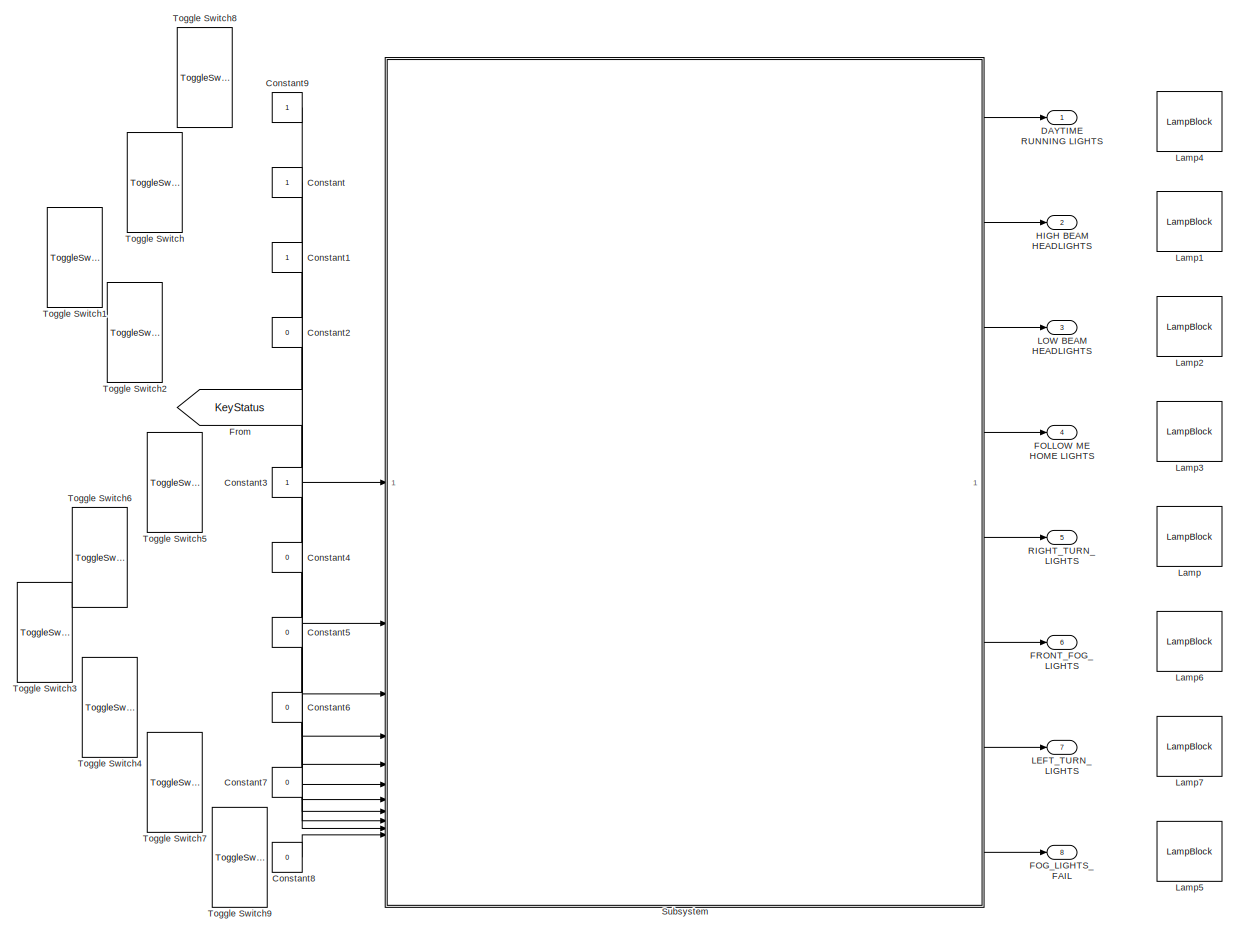
[diagram: root canvas - part 1/2, right side, full height]
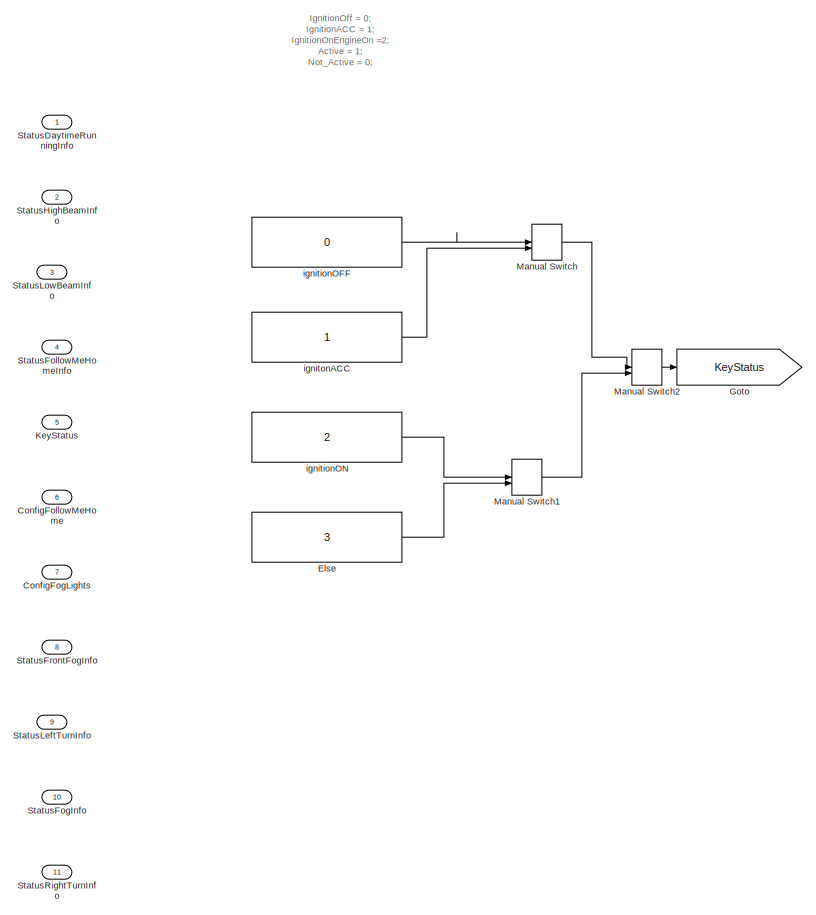
[diagram: root canvas - part 2/2, left side, full height]
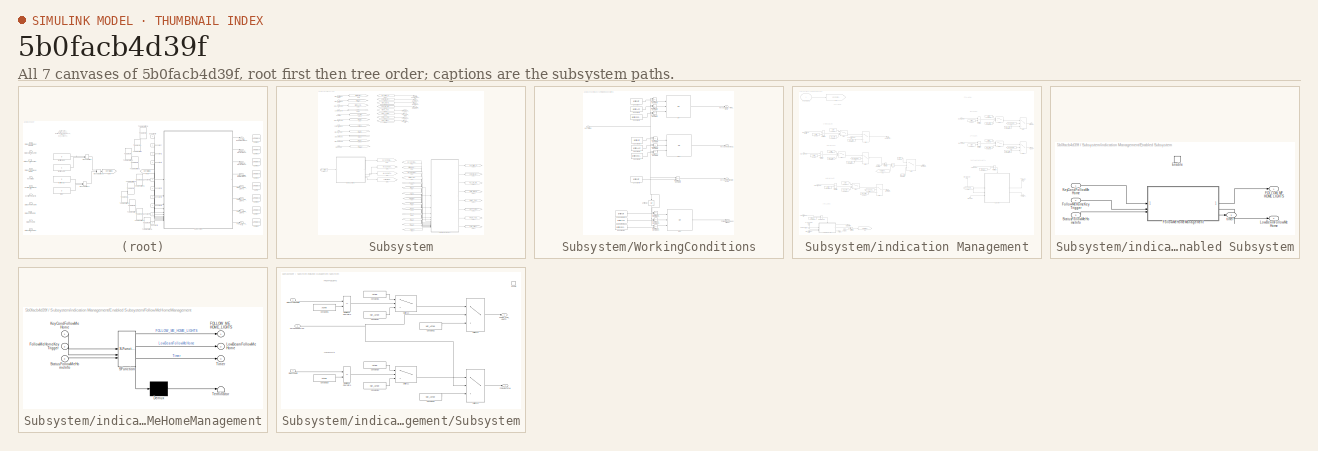
[diagram: thumbnail index - all 7 canvases of the model, root first then tree order]
MODEL slx_5b0facb4d39f
KIND model
CONFIG AbsTol = auto
CONFIG EnableMultiTasking = off
CONFIG FixedStep = 0.01
CONFIG MaxStep = auto
CONFIG MinStep = auto
CONFIG RelTol = 1e-3
CONFIG SampleTimeConstraint = Unconstrained
CONFIG SolverName = FixedStepDiscrete
CONFIG StartTime = 0.0
CONFIG StopTime = inf
WORKSPACE source: MATLAB code (in-file)
WORKSPACE IgnitionOff = 0
WORKSPACE IgnitionACC = 1
WORKSPACE IgnitionOnEngineOn = 2
WORKSPACE Active = 1
WORKSPACE Not_Active = 0
WORKSPACE Present = 1
WORKSPACE Absent = 0
BLOCK [Inport] ConfigFogLights
  Port = 7
BLOCK [Inport] ConfigFollowMeHome
  Port = 6
BLOCK [Constant] Constant
BLOCK [Constant] Constant1
BLOCK [Constant] Constant2
  Value = 0
BLOCK [Constant] Constant3
BLOCK [Constant] Constant4
  Value = 0
BLOCK [Constant] Constant5
  Value = 0
BLOCK [Constant] Constant6
  Value = 0
BLOCK [Constant] Constant7
  Value = 0
BLOCK [Constant] Constant8
  Value = 0
BLOCK [Constant] Constant9
BLOCK [Outport] DAYTIME RUNNING LIGHTS
BLOCK [Constant] Else
  SampleTime = -1
  Value = 3
BLOCK [Outport] FOG_LIGHTS_FAIL
  Port = 8
BLOCK [Outport] FOLLOW ME HOME LIGHTS
  Port = 4
BLOCK [Outport] FRONT_FOG_LIGHTS
  Port = 6
BLOCK [From] From
  GotoTag = KeyStatus
BLOCK [Goto] Goto
  GotoTag = KeyStatus
BLOCK [Outport] HIGH BEAM HEADLIGHTS
  Port = 2
BLOCK [Inport] KeyStatus
  Port = 5
BLOCK [Outport] LEFT_TURN_LIGHTS
  Port = 7
BLOCK [Outport] LOW BEAM HEADLIGHTS
  Port = 3
BLOCK [LampBlock] Lamp
  LabelPosition = Hide
BLOCK [LampBlock] Lamp1
  LabelPosition = Hide
BLOCK [LampBlock] Lamp2
  LabelPosition = Hide
BLOCK [LampBlock] Lamp3
  LabelPosition = Hide
BLOCK [LampBlock] Lamp4
  LabelPosition = Hide
BLOCK [LampBlock] Lamp5
  LabelPosition = Hide
BLOCK [LampBlock] Lamp6
  LabelPosition = Hide
BLOCK [LampBlock] Lamp7
  LabelPosition = Hide
BLOCK [ManualSwitch] Manual Switch
BLOCK [ManualSwitch] Manual Switch1
BLOCK [ManualSwitch] Manual Switch2
  CurrentSetting = 0
BLOCK [Outport] RIGHT_TURN_LIGHTS
  Port = 5
BLOCK [Inport] StatusDaytimeRunningInfo
BLOCK [Inport] StatusFogInfo
  Port = 10
BLOCK [Inport] StatusFollowMeHomeInfo
  Port = 4
BLOCK [Inport] StatusFrontFogInfo
  Port = 8
BLOCK [Inport] StatusHighBeamInfo
  Port = 2
BLOCK [Inport] StatusLeftTurnInfo
  Port = 9
BLOCK [Inport] StatusLowBeamInfo
  Port = 3
BLOCK [Inport] StatusRightTurnInfo
  Port = 11
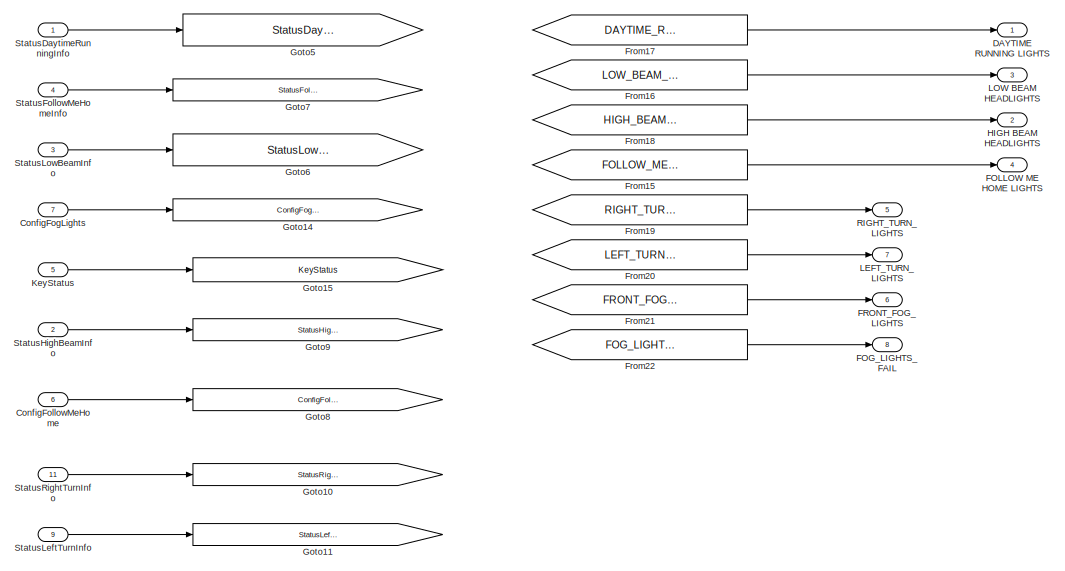
[diagram: Subsystem - part 1/3, top center region]
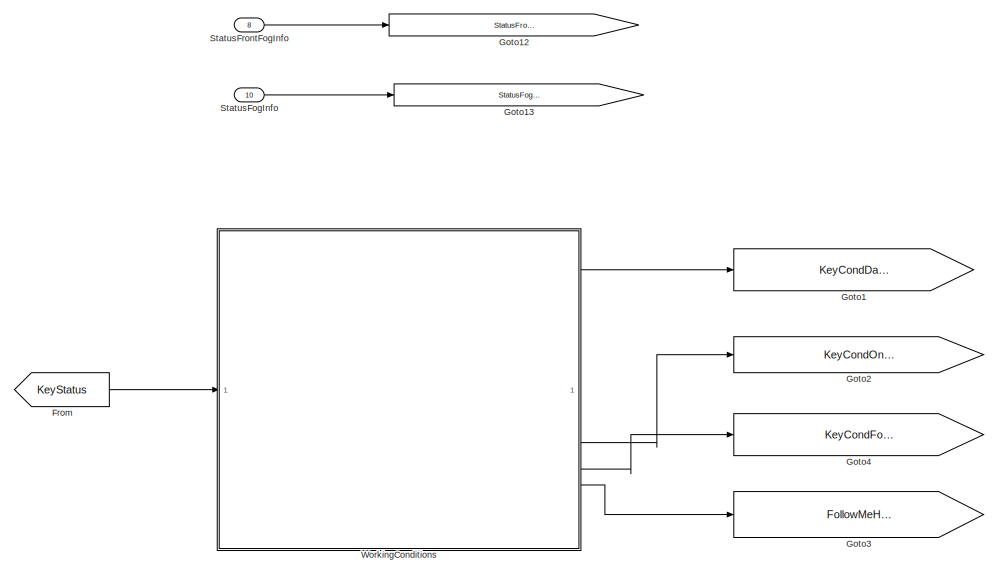
[diagram: Subsystem - part 2/3, middle left region]
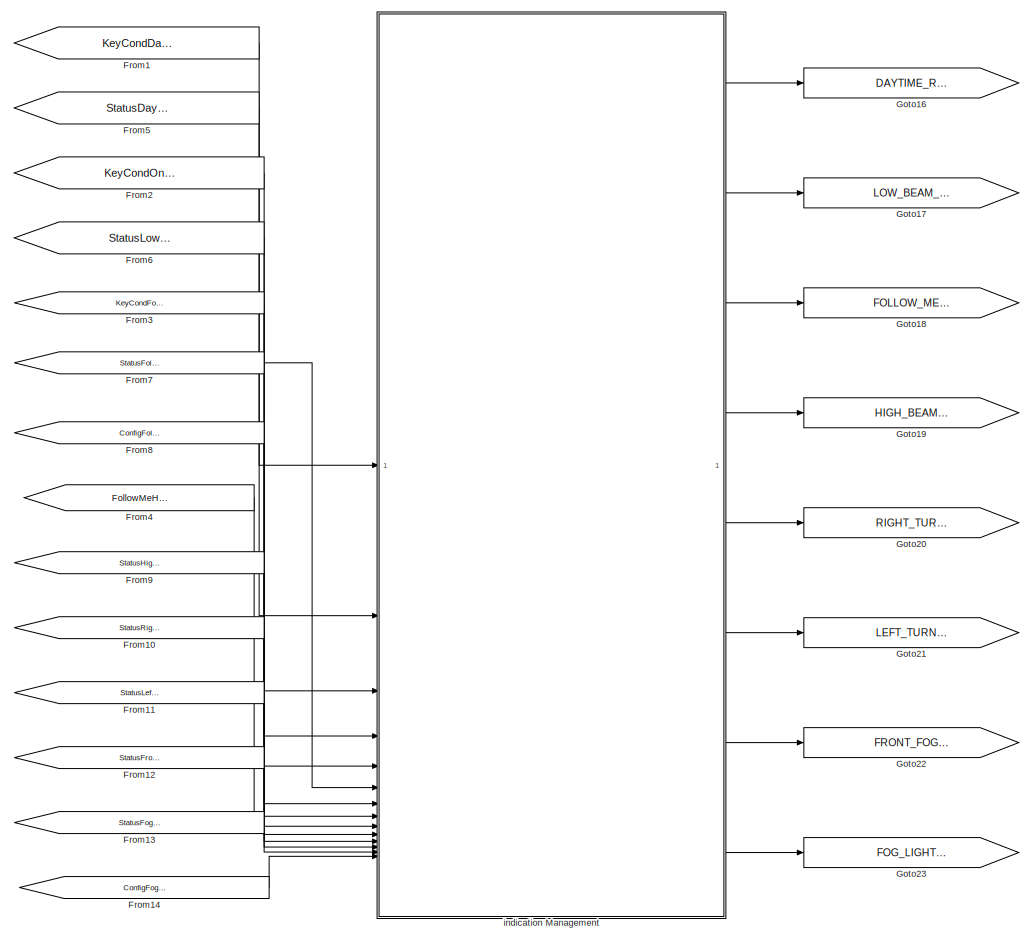
[diagram: Subsystem - part 3/3, bottom right region]
BLOCK [SubSystem] Subsystem
BLOCK [Inport] Subsystem/ConfigFogLights
  Port = 7
BLOCK [Inport] Subsystem/ConfigFollowMeHome
  Port = 6
BLOCK [Outport] Subsystem/DAYTIME RUNNING LIGHTS
BLOCK [Outport] Subsystem/FOG_LIGHTS_FAIL
  Port = 8
BLOCK [Outport] Subsystem/FOLLOW ME HOME LIGHTS
  Port = 4
BLOCK [Outport] Subsystem/FRONT_FOG_LIGHTS
  Port = 6
BLOCK [From] Subsystem/From
  GotoTag = KeyStatus
BLOCK [From] Subsystem/From1
  GotoTag = KeyCondDayTimeLights
BLOCK [From] Subsystem/From10
  GotoTag = StatusRightTurnInfo
BLOCK [From] Subsystem/From11
  GotoTag = StatusLeftTurnInfo
BLOCK [From] Subsystem/From12
  GotoTag = StatusFrontFogInfo
BLOCK [From] Subsystem/From13
  GotoTag = StatusFogInfo
BLOCK [From] Subsystem/From14
  GotoTag = ConfigFogLights
BLOCK [From] Subsystem/From15
  GotoTag = FOLLOW_ME_HOME_LIGHTS
BLOCK [From] Subsystem/From16
  GotoTag = LOW_BEAM_HEADLIGHTS
BLOCK [From] Subsystem/From17
  GotoTag = DAYTIME_RUNNING_LIGHTS
BLOCK [From] Subsystem/From18
  GotoTag = HIGH_BEAM_HEADLIGHTS
BLOCK [From] Subsystem/From19
  GotoTag = RIGHT_TURN_LIGHTS
BLOCK [From] Subsystem/From2
  GotoTag = KeyCondOnOrACC
BLOCK [From] Subsystem/From20
  GotoTag = LEFT_TURN_LIGHTS
BLOCK [From] Subsystem/From21
  GotoTag = FRONT_FOG_LIGHTS
BLOCK [From] Subsystem/From22
  GotoTag = FOG_LIGHTS_FAIL
BLOCK [From] Subsystem/From3
  GotoTag = KeyCondFollowMeHome
BLOCK [From] Subsystem/From4
  GotoTag = FollowMeHomeKeyTrigger
BLOCK [From] Subsystem/From5
  GotoTag = StatusDaytimeRunningInfos
BLOCK [From] Subsystem/From6
  GotoTag = StatusLowBeamInfo
BLOCK [From] Subsystem/From7
  GotoTag = StatusFollowMeHomeInfo
BLOCK [From] Subsystem/From8
  GotoTag = ConfigFollowMeHome
BLOCK [From] Subsystem/From9
  GotoTag = StatusHighBeamInfo
BLOCK [Goto] Subsystem/Goto1
  GotoTag = KeyCondDayTimeLights
BLOCK [Goto] Subsystem/Goto10
  GotoTag = StatusRightTurnInfo
BLOCK [Goto] Subsystem/Goto11
  GotoTag = StatusLeftTurnInfo
BLOCK [Goto] Subsystem/Goto12
  GotoTag = StatusFrontFogInfo
BLOCK [Goto] Subsystem/Goto13
  GotoTag = StatusFogInfo
BLOCK [Goto] Subsystem/Goto14
  GotoTag = ConfigFogLights
BLOCK [Goto] Subsystem/Goto15
  GotoTag = KeyStatus
BLOCK [Goto] Subsystem/Goto16
  GotoTag = DAYTIME_RUNNING_LIGHTS
BLOCK [Goto] Subsystem/Goto17
  GotoTag = LOW_BEAM_HEADLIGHTS
BLOCK [Goto] Subsystem/Goto18
  GotoTag = FOLLOW_ME_HOME_LIGHTS
BLOCK [Goto] Subsystem/Goto19
  GotoTag = HIGH_BEAM_HEADLIGHTS
BLOCK [Goto] Subsystem/Goto2
  GotoTag = KeyCondOnOrACC
BLOCK [Goto] Subsystem/Goto20
  GotoTag = RIGHT_TURN_LIGHTS
BLOCK [Goto] Subsystem/Goto21
  GotoTag = LEFT_TURN_LIGHTS
BLOCK [Goto] Subsystem/Goto22
  GotoTag = FRONT_FOG_LIGHTS
BLOCK [Goto] Subsystem/Goto23
  GotoTag = FOG_LIGHTS_FAIL
BLOCK [Goto] Subsystem/Goto3
  GotoTag = FollowMeHomeKeyTrigger
BLOCK [Goto] Subsystem/Goto4
  GotoTag = KeyCondFollowMeHome
BLOCK [Goto] Subsystem/Goto5
  GotoTag = StatusDaytimeRunningInfos
BLOCK [Goto] Subsystem/Goto6
  GotoTag = StatusLowBeamInfo
BLOCK [Goto] Subsystem/Goto7
  GotoTag = StatusFollowMeHomeInfo
BLOCK [Goto] Subsystem/Goto8
  GotoTag = ConfigFollowMeHome
BLOCK [Goto] Subsystem/Goto9
  GotoTag = StatusHighBeamInfo
BLOCK [Outport] Subsystem/HIGH BEAM HEADLIGHTS
  Port = 2
BLOCK [Inport] Subsystem/KeyStatus
  Port = 5
BLOCK [Outport] Subsystem/LEFT_TURN_LIGHTS
  Port = 7
BLOCK [Outport] Subsystem/LOW BEAM HEADLIGHTS
  Port = 3
BLOCK [Outport] Subsystem/RIGHT_TURN_LIGHTS
  Port = 5
BLOCK [Inport] Subsystem/StatusDaytimeRunningInfo
BLOCK [Inport] Subsystem/StatusFogInfo
  Port = 10
BLOCK [Inport] Subsystem/StatusFollowMeHomeInfo
  Port = 4
BLOCK [Inport] Subsystem/StatusFrontFogInfo
  Port = 8
BLOCK [Inport] Subsystem/StatusHighBeamInfo
  Port = 2
BLOCK [Inport] Subsystem/StatusLeftTurnInfo
  Port = 9
BLOCK [Inport] Subsystem/StatusLowBeamInfo
  Port = 3
BLOCK [Inport] Subsystem/StatusRightTurnInfo
  Port = 11
BLOCK [SubSystem] Subsystem/WorkingConditions
BLOCK [Constant] Subsystem/WorkingConditions/Constant
  SampleTime = -1
  Value = IgnitionOff
BLOCK [Constant] Subsystem/WorkingConditions/Constant1
  SampleTime = -1
  Value = IgnitionACC
BLOCK [Constant] Subsystem/WorkingConditions/Constant10
  SampleTime = -1
  Value = IgnitionACC
BLOCK [Constant] Subsystem/WorkingConditions/Constant11
  SampleTime = -1
  Value = IgnitionOnEngineOn
BLOCK [Constant] Subsystem/WorkingConditions/Constant2
  SampleTime = -1
  Value = IgnitionOnEngineOn
BLOCK [Constant] Subsystem/WorkingConditions/Constant3
  SampleTime = -1
  Value = IgnitionOff
BLOCK [Constant] Subsystem/WorkingConditions/Constant4
  SampleTime = -1
  Value = IgnitionACC
BLOCK [Constant] Subsystem/WorkingConditions/Constant5
  SampleTime = -1
  Value = IgnitionOnEngineOn
BLOCK [Constant] Subsystem/WorkingConditions/Constant6
  SampleTime = -1
  Value = IgnitionOff
BLOCK [Constant] Subsystem/WorkingConditions/Constant9
  SampleTime = -1
  Value = IgnitionOff
BLOCK [Outport] Subsystem/WorkingConditions/FollowMeHomeKeyTrigger
  Port = 4
BLOCK [Outport] Subsystem/WorkingConditions/KeyCondDayTimeLights
BLOCK [Outport] Subsystem/WorkingConditions/KeyCondFollowMeHome
  Port = 3
BLOCK [Outport] Subsystem/WorkingConditions/KeyCondOnOrACC
  Port = 2
BLOCK [Inport] Subsystem/WorkingConditions/KeyStatus
BLOCK [Logic] Subsystem/WorkingConditions/OR
  AllPortsSameDT = off
  IconShape = distinctive
  Inputs = 3
  Operator = OR
  OutDataTypeStr = boolean
BLOCK [Logic] Subsystem/WorkingConditions/OR1
  AllPortsSameDT = off
  IconShape = distinctive
  Inputs = 3
  Operator = OR
  OutDataTypeStr = boolean
BLOCK [Logic] Subsystem/WorkingConditions/OR3
  AllPortsSameDT = off
  IconShape = distinctive
  Inputs = 3
  Operator = OR
  OutDataTypeStr = boolean
BLOCK [RelationalOperator] Subsystem/WorkingConditions/Relational Operator1
  InputSameDT = off
  Operator = ==
  OutDataTypeStr = boolean
  RndMeth = Simplest
BLOCK [RelationalOperator] Subsystem/WorkingConditions/Relational Operator10
  InputSameDT = off
  Operator = ==
  OutDataTypeStr = boolean
  RndMeth = Simplest
BLOCK [RelationalOperator] Subsystem/WorkingConditions/Relational Operator11
  InputSameDT = off
  Operator = ==
  OutDataTypeStr = boolean
  RndMeth = Simplest
BLOCK [RelationalOperator] Subsystem/WorkingConditions/Relational Operator12
  InputSameDT = off
  Operator = ==
  OutDataTypeStr = boolean
  RndMeth = Simplest
BLOCK [RelationalOperator] Subsystem/WorkingConditions/Relational Operator2
  InputSameDT = off
  Operator = ==
  OutDataTypeStr = boolean
  RndMeth = Simplest
BLOCK [RelationalOperator] Subsystem/WorkingConditions/Relational Operator3
  InputSameDT = off
  Operator = ==
  OutDataTypeStr = boolean
  RndMeth = Simplest
BLOCK [RelationalOperator] Subsystem/WorkingConditions/Relational Operator4
  InputSameDT = off
  Operator = ==
  OutDataTypeStr = boolean
  RndMeth = Simplest
BLOCK [RelationalOperator] Subsystem/WorkingConditions/Relational Operator5
  InputSameDT = off
  Operator = ~=
  OutDataTypeStr = boolean
  RndMeth = Simplest
BLOCK [RelationalOperator] Subsystem/WorkingConditions/Relational Operator6
  InputSameDT = off
  Operator = ==
  OutDataTypeStr = boolean
  RndMeth = Simplest
BLOCK [RelationalOperator] Subsystem/WorkingConditions/Relational Operator8
  InputSameDT = off
  Operator = ==
  OutDataTypeStr = boolean
  RndMeth = Simplest
BLOCK [UnitDelay] Subsystem/WorkingConditions/Unit Delay
  HasFrameUpgradeWarning = on
  NameLocation = left
  SampleTime = -1
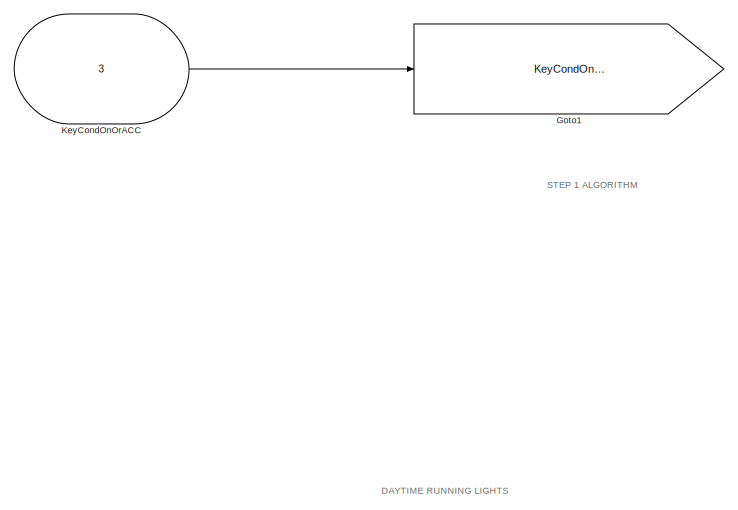
[diagram: Subsystem/indication Management - part 1/7, top left region]
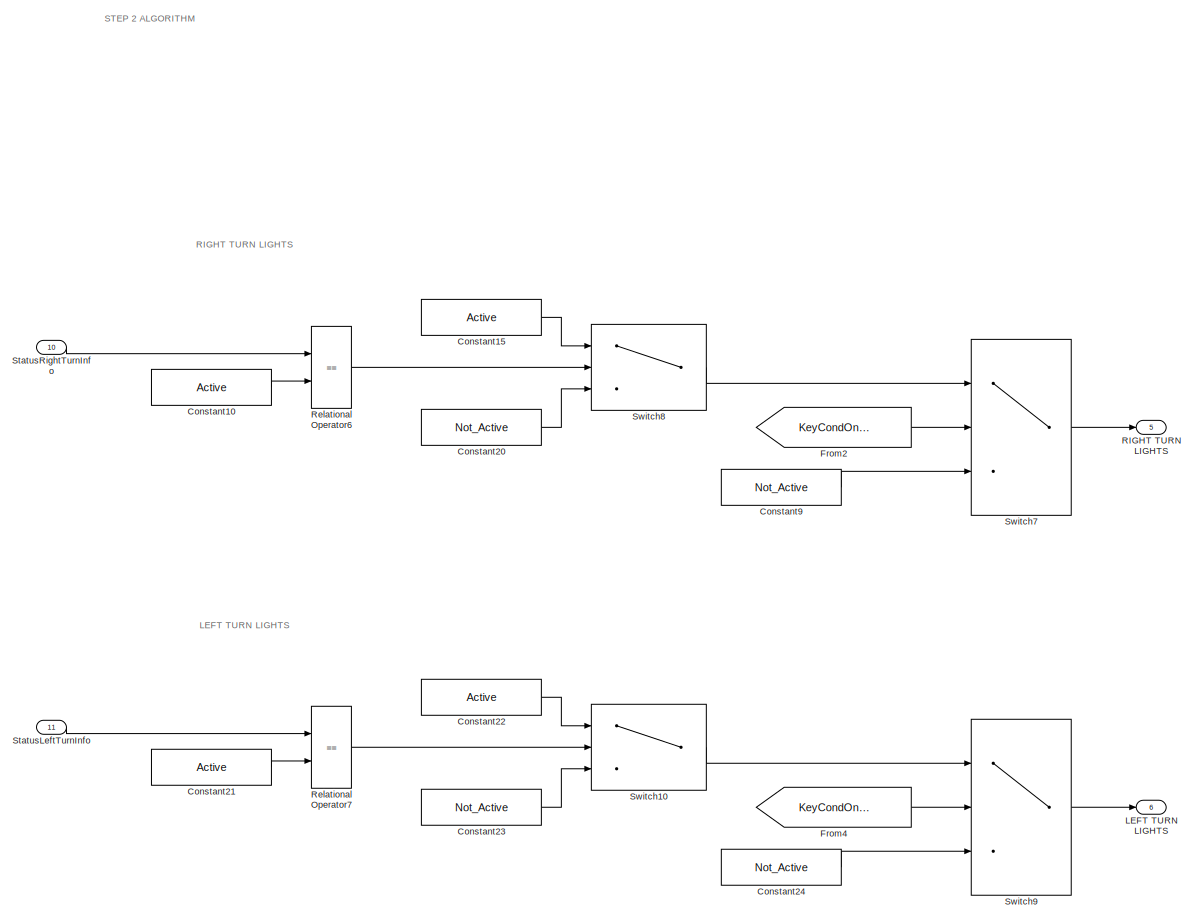
[diagram: Subsystem/indication Management - part 2/7, top right region]
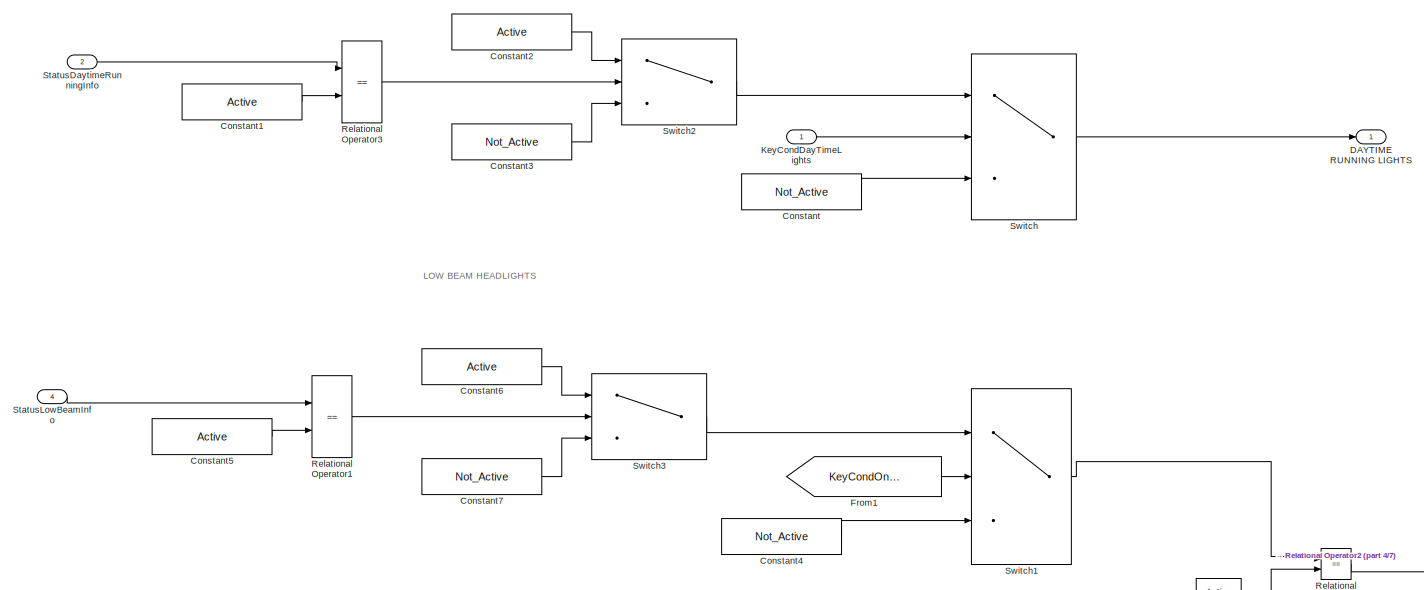
[diagram: Subsystem/indication Management - part 3/7, middle left region]
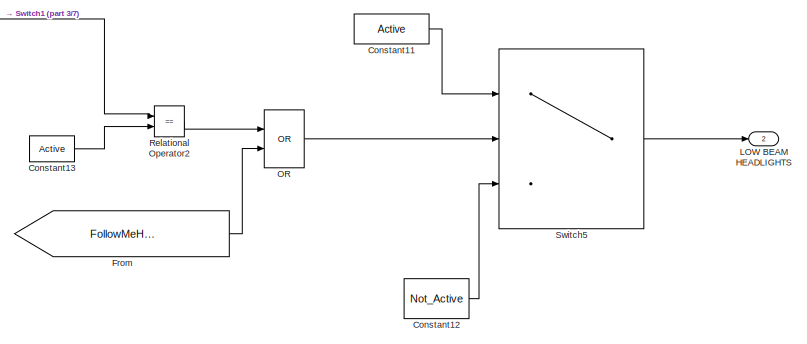
[diagram: Subsystem/indication Management - part 4/7, central region]
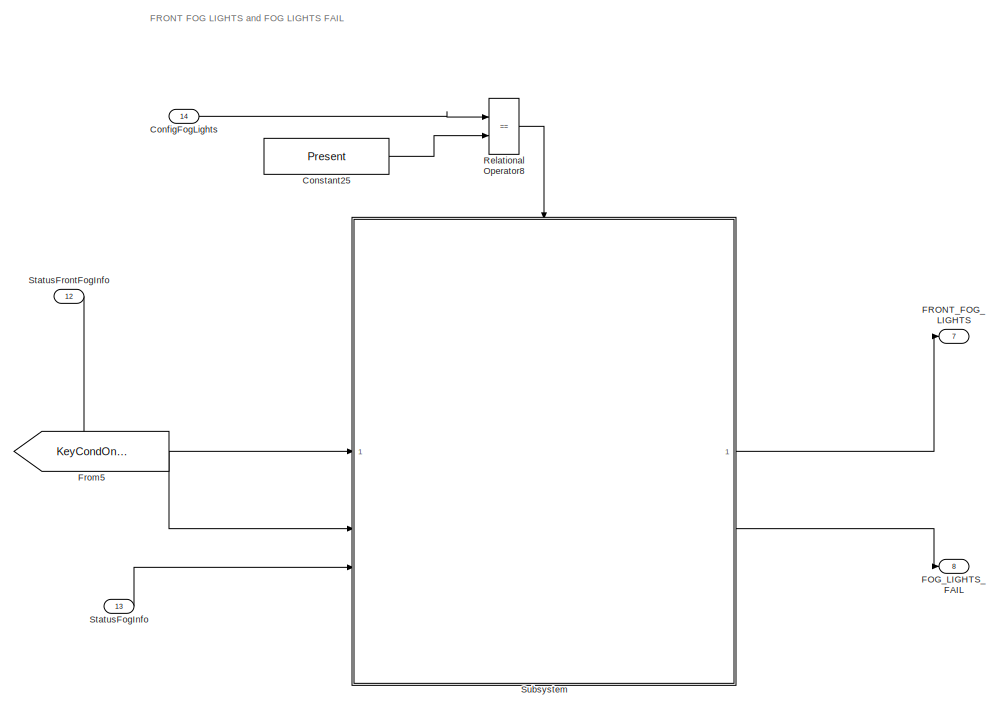
[diagram: Subsystem/indication Management - part 5/7, middle right region]
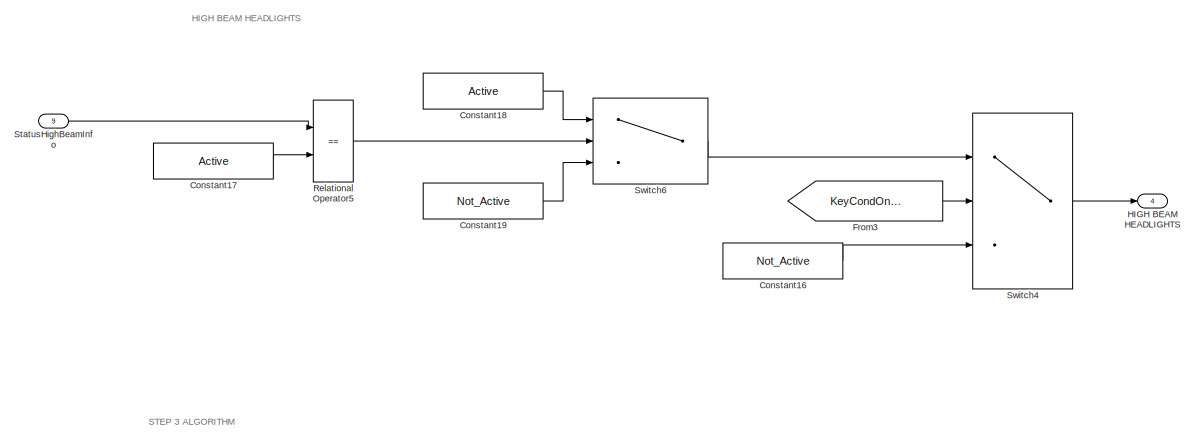
[diagram: Subsystem/indication Management - part 6/7, bottom left region]
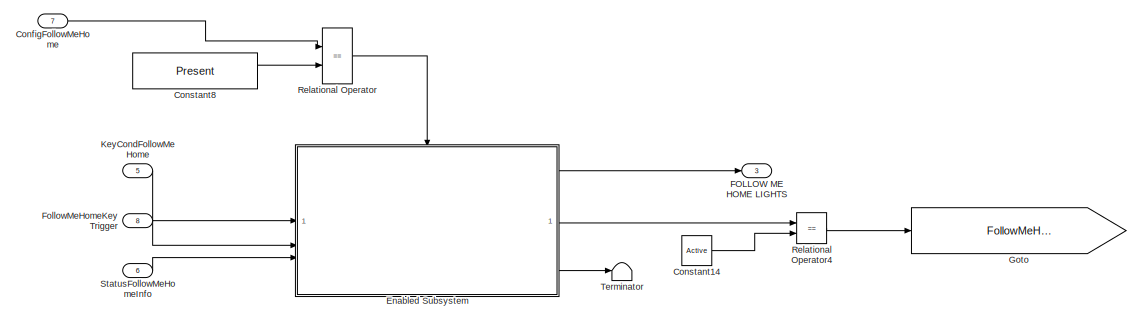
[diagram: Subsystem/indication Management - part 7/7, bottom left region]
BLOCK [SubSystem] Subsystem/indication Management
BLOCK [Inport] Subsystem/indication Management/ConfigFogLights
  Port = 14
BLOCK [Inport] Subsystem/indication Management/ConfigFollowMeHome
  Port = 7
BLOCK [Constant] Subsystem/indication Management/Constant
  SampleTime = -1
  Value = Not_Active
BLOCK [Constant] Subsystem/indication Management/Constant1
  SampleTime = -1
  Value = Active
BLOCK [Constant] Subsystem/indication Management/Constant10
  SampleTime = -1
  Value = Active
BLOCK [Constant] Subsystem/indication Management/Constant11
  SampleTime = -1
  Value = Active
BLOCK [Constant] Subsystem/indication Management/Constant12
  SampleTime = -1
  Value = Not_Active
BLOCK [Constant] Subsystem/indication Management/Constant13
  SampleTime = -1
  Value = Active
BLOCK [Constant] Subsystem/indication Management/Constant14
  SampleTime = -1
  Value = Active
BLOCK [Constant] Subsystem/indication Management/Constant15
  SampleTime = -1
  Value = Active
BLOCK [Constant] Subsystem/indication Management/Constant16
  SampleTime = -1
  Value = Not_Active
BLOCK [Constant] Subsystem/indication Management/Constant17
  SampleTime = -1
  Value = Active
BLOCK [Constant] Subsystem/indication Management/Constant18
  SampleTime = -1
  Value = Active
BLOCK [Constant] Subsystem/indication Management/Constant19
  SampleTime = -1
  Value = Not_Active
BLOCK [Constant] Subsystem/indication Management/Constant2
  SampleTime = -1
  Value = Active
BLOCK [Constant] Subsystem/indication Management/Constant20
  SampleTime = -1
  Value = Not_Active
BLOCK [Constant] Subsystem/indication Management/Constant21
  SampleTime = -1
  Value = Active
BLOCK [Constant] Subsystem/indication Management/Constant22
  SampleTime = -1
  Value = Active
BLOCK [Constant] Subsystem/indication Management/Constant23
  SampleTime = -1
  Value = Not_Active
BLOCK [Constant] Subsystem/indication Management/Constant24
  SampleTime = -1
  Value = Not_Active
BLOCK [Constant] Subsystem/indication Management/Constant25
  SampleTime = -1
  Value = Present
BLOCK [Constant] Subsystem/indication Management/Constant3
  SampleTime = -1
  Value = Not_Active
BLOCK [Constant] Subsystem/indication Management/Constant4
  SampleTime = -1
  Value = Not_Active
BLOCK [Constant] Subsystem/indication Management/Constant5
  SampleTime = -1
  Value = Active
BLOCK [Constant] Subsystem/indication Management/Constant6
  SampleTime = -1
  Value = Active
BLOCK [Constant] Subsystem/indication Management/Constant7
  SampleTime = -1
  Value = Not_Active
BLOCK [Constant] Subsystem/indication Management/Constant8
  SampleTime = -1
  Value = Present
BLOCK [Constant] Subsystem/indication Management/Constant9
  SampleTime = -1
  Value = Not_Active
BLOCK [Outport] Subsystem/indication Management/DAYTIME RUNNING LIGHTS
BLOCK [SubSystem] Subsystem/indication Management/Enabled Subsystem
  TreatAsAtomicUnit = on
BLOCK [EnablePort] Subsystem/indication Management/Enabled Subsystem/Enable
BLOCK [Outport] Subsystem/indication Management/Enabled Subsystem/FOLLOW ME HOME LIGHTS
  InitialOutput = Not_Active
BLOCK [Inport] Subsystem/indication Management/Enabled Subsystem/FollowMeHomeKeyTrigger
  Port = 2
BLOCK [SubSystem] Subsystem/indication Management/Enabled Subsystem/FollowMeHomeManagement
  ErrorFcn = Stateflow.Translate.translate
  PermitHierarchicalResolution = ExplicitOnly
  SFBlockType = Chart
  TreatAsAtomicUnit = on
BLOCK [Demux] Subsystem/indication Management/Enabled Subsystem/FollowMeHomeManagement/ Demux 
  Outputs = 1
BLOCK [S-Function] Subsystem/indication Management/Enabled Subsystem/FollowMeHomeManagement/ SFunction 
  EnableBusSupport = on
  FunctionName = sf_sfun
  Parameters = Active,Not_Active
  PortCounts = [3 4]
  SFcnIsStateOwnerBlock = off
  SFunctionDeploymentMode = off
  Tag = Stateflow S-Function 3
BLOCK [Terminator] Subsystem/indication Management/Enabled Subsystem/FollowMeHomeManagement/ Terminator 
BLOCK [Outport] Subsystem/indication Management/Enabled Subsystem/FollowMeHomeManagement/FOLLOW_ME_HOME_LIGHTS
BLOCK [Inport] Subsystem/indication Management/Enabled Subsystem/FollowMeHomeManagement/FollowMeHomeKeyTrigger
  Port = 2
BLOCK [Inport] Subsystem/indication Management/Enabled Subsystem/FollowMeHomeManagement/KeyCondFollowMeHome
BLOCK [Outport] Subsystem/indication Management/Enabled Subsystem/FollowMeHomeManagement/LowBeamFollowMeHome
  Port = 2
BLOCK [Inport] Subsystem/indication Management/Enabled Subsystem/FollowMeHomeManagement/StatusFollowMeHomeInfo
  Port = 3
BLOCK [Outport] Subsystem/indication Management/Enabled Subsystem/FollowMeHomeManagement/Timer
  Port = 3
BLOCK [Inport] Subsystem/indication Management/Enabled Subsystem/KeyCondFollowMeHome
BLOCK [Outport] Subsystem/indication Management/Enabled Subsystem/LowBeamFollowMeHome
  InitialOutput = Not_Active
  Port = 2
BLOCK [Inport] Subsystem/indication Management/Enabled Subsystem/StatusFollowMeHomeInfo
  Port = 3
BLOCK [Outport] Subsystem/indication Management/Enabled Subsystem/timer
  InitialOutput = Not_Active
  Port = 3
BLOCK [Outport] Subsystem/indication Management/FOG_LIGHTS_FAIL
  Port = 8
BLOCK [Outport] Subsystem/indication Management/FOLLOW ME HOME LIGHTS
  Port = 3
BLOCK [Outport] Subsystem/indication Management/FRONT_FOG_LIGHTS
  Port = 7
BLOCK [Inport] Subsystem/indication Management/FollowMeHomeKeyTrigger
  Port = 8
BLOCK [From] Subsystem/indication Management/From
  GotoTag = FollowMeHomeLowBeamActive
BLOCK [From] Subsystem/indication Management/From1
  GotoTag = KeyCondOnOrACC
BLOCK [From] Subsystem/indication Management/From2
  GotoTag = KeyCondOnOrACC
BLOCK [From] Subsystem/indication Management/From3
  GotoTag = KeyCondOnOrACC
BLOCK [From] Subsystem/indication Management/From4
  GotoTag = KeyCondOnOrACC
BLOCK [From] Subsystem/indication Management/From5
  GotoTag = KeyCondOnOrACC
BLOCK [Goto] Subsystem/indication Management/Goto
  GotoTag = FollowMeHomeLowBeamActive
BLOCK [Goto] Subsystem/indication Management/Goto1
  GotoTag = KeyCondOnOrACC
BLOCK [Outport] Subsystem/indication Management/HIGH BEAM HEADLIGHTS
  Port = 4
BLOCK [Inport] Subsystem/indication Management/KeyCondDayTimeLights
BLOCK [Inport] Subsystem/indication Management/KeyCondFollowMeHome
  Port = 5
BLOCK [Inport] Subsystem/indication Management/KeyCondOnOrACC
  Port = 3
BLOCK [Outport] Subsystem/indication Management/LEFT TURN LIGHTS
  Port = 6
BLOCK [Outport] Subsystem/indication Management/LOW BEAM HEADLIGHTS
  Port = 2
BLOCK [Logic] Subsystem/indication Management/OR
  AllPortsSameDT = off
  IconShape = distinctive
  Operator = OR
  OutDataTypeStr = boolean
BLOCK [Outport] Subsystem/indication Management/RIGHT TURN LIGHTS
  Port = 5
BLOCK [RelationalOperator] Subsystem/indication Management/Relational Operator
  InputSameDT = off
  Operator = ==
  OutDataTypeStr = boolean
  RndMeth = Simplest
BLOCK [RelationalOperator] Subsystem/indication Management/Relational Operator1
  InputSameDT = off
  Operator = ==
  OutDataTypeStr = boolean
  RndMeth = Simplest
BLOCK [RelationalOperator] Subsystem/indication Management/Relational Operator2
  InputSameDT = off
  Operator = ==
  OutDataTypeStr = boolean
  RndMeth = Simplest
BLOCK [RelationalOperator] Subsystem/indication Management/Relational Operator3
  InputSameDT = off
  Operator = ==
  OutDataTypeStr = boolean
  RndMeth = Simplest
BLOCK [RelationalOperator] Subsystem/indication Management/Relational Operator4
  InputSameDT = off
  Operator = ==
  OutDataTypeStr = boolean
  RndMeth = Simplest
BLOCK [RelationalOperator] Subsystem/indication Management/Relational Operator5
  InputSameDT = off
  Operator = ==
  OutDataTypeStr = boolean
  RndMeth = Simplest
BLOCK [RelationalOperator] Subsystem/indication Management/Relational Operator6
  InputSameDT = off
  Operator = ==
  OutDataTypeStr = boolean
  RndMeth = Simplest
BLOCK [RelationalOperator] Subsystem/indication Management/Relational Operator7
  InputSameDT = off
  Operator = ==
  OutDataTypeStr = boolean
  RndMeth = Simplest
BLOCK [RelationalOperator] Subsystem/indication Management/Relational Operator8
  InputSameDT = off
  Operator = ==
  OutDataTypeStr = boolean
  RndMeth = Simplest
BLOCK [Inport] Subsystem/indication Management/StatusDaytimeRunningInfo
  Port = 2
BLOCK [Inport] Subsystem/indication Management/StatusFogInfo
  Port = 13
BLOCK [Inport] Subsystem/indication Management/StatusFollowMeHomeInfo
  Port = 6
BLOCK [Inport] Subsystem/indication Management/StatusFrontFogInfo
  Port = 12
BLOCK [Inport] Subsystem/indication Management/StatusHighBeamInfo
  Port = 9
BLOCK [Inport] Subsystem/indication Management/StatusLeftTurnInfo
  Port = 11
BLOCK [Inport] Subsystem/indication Management/StatusLowBeamInfo
  Port = 4
BLOCK [Inport] Subsystem/indication Management/StatusRightTurnInfo
  Port = 10
BLOCK [SubSystem] Subsystem/indication Management/Subsystem
BLOCK [Constant] Subsystem/indication Management/Subsystem/Constant25
  SampleTime = -1
  Value = Active
BLOCK [Constant] Subsystem/indication Management/Subsystem/Constant26
  SampleTime = -1
  Value = Active
BLOCK [Constant] Subsystem/indication Management/Subsystem/Constant27
  SampleTime = -1
  Value = Not_Active
BLOCK [Constant] Subsystem/indication Management/Subsystem/Constant28
  SampleTime = -1
  Value = Active
BLOCK [Constant] Subsystem/indication Management/Subsystem/Constant29
  SampleTime = -1
  Value = Active
BLOCK [Constant] Subsystem/indication Management/Subsystem/Constant30
  SampleTime = -1
  Value = Not_Active
BLOCK [Constant] Subsystem/indication Management/Subsystem/Constant31
  SampleTime = -1
  Value = Not_Active
BLOCK [Constant] Subsystem/indication Management/Subsystem/Constant32
  SampleTime = -1
  Value = Not_Active
BLOCK [EnablePort] Subsystem/indication Management/Subsystem/Enable
BLOCK [Outport] Subsystem/indication Management/Subsystem/FOG LIGHTS FAIL
  Port = 2
BLOCK [Outport] Subsystem/indication Management/Subsystem/FRONT_FOG_LIGHTS
BLOCK [Inport] Subsystem/indication Management/Subsystem/KeyCondOnOrACC
  Port = 2
BLOCK [RelationalOperator] Subsystem/indication Management/Subsystem/Relational Operator8
  InputSameDT = off
  Operator = ==
  OutDataTypeStr = boolean
  RndMeth = Simplest
BLOCK [RelationalOperator] Subsystem/indication Management/Subsystem/Relational Operator9
  InputSameDT = off
  Operator = ==
  OutDataTypeStr = boolean
  RndMeth = Simplest
BLOCK [Inport] Subsystem/indication Management/Subsystem/StatusFogInfo
  Port = 3
BLOCK [Inport] Subsystem/indication Management/Subsystem/StatusFrontFogInfo
BLOCK [Switch] Subsystem/indication Management/Subsystem/Switch11
  Criteria = u2 ~= 0
  InputSameDT = off
  SaturateOnIntegerOverflow = off
BLOCK [Switch] Subsystem/indication Management/Subsystem/Switch12
  Criteria = u2 ~= 0
  InputSameDT = off
  SaturateOnIntegerOverflow = off
BLOCK [Switch] Subsystem/indication Management/Subsystem/Switch13
  Criteria = u2 ~= 0
  InputSameDT = off
  SaturateOnIntegerOverflow = off
BLOCK [Switch] Subsystem/indication Management/Subsystem/Switch14
  Criteria = u2 ~= 0
  InputSameDT = off
  SaturateOnIntegerOverflow = off
BLOCK [Switch] Subsystem/indication Management/Switch
  Criteria = u2 ~= 0
  InputSameDT = off
  SaturateOnIntegerOverflow = off
BLOCK [Switch] Subsystem/indication Management/Switch1
  Criteria = u2 ~= 0
  InputSameDT = off
  SaturateOnIntegerOverflow = off
BLOCK [Switch] Subsystem/indication Management/Switch10
  Criteria = u2 ~= 0
  InputSameDT = off
  SaturateOnIntegerOverflow = off
BLOCK [Switch] Subsystem/indication Management/Switch2
  Criteria = u2 ~= 0
  InputSameDT = off
  SaturateOnIntegerOverflow = off
BLOCK [Switch] Subsystem/indication Management/Switch3
  Criteria = u2 ~= 0
  InputSameDT = off
  SaturateOnIntegerOverflow = off
BLOCK [Switch] Subsystem/indication Management/Switch4
  Criteria = u2 ~= 0
  InputSameDT = off
  SaturateOnIntegerOverflow = off
BLOCK [Switch] Subsystem/indication Management/Switch5
  Criteria = u2 ~= 0
  InputSameDT = off
  SaturateOnIntegerOverflow = off
BLOCK [Switch] Subsystem/indication Management/Switch6
  Criteria = u2 ~= 0
  InputSameDT = off
  SaturateOnIntegerOverflow = off
BLOCK [Switch] Subsystem/indication Management/Switch7
  Criteria = u2 ~= 0
  InputSameDT = off
  SaturateOnIntegerOverflow = off
BLOCK [Switch] Subsystem/indication Management/Switch8
  Criteria = u2 ~= 0
  InputSameDT = off
  SaturateOnIntegerOverflow = off
BLOCK [Switch] Subsystem/indication Management/Switch9
  Criteria = u2 ~= 0
  InputSameDT = off
  SaturateOnIntegerOverflow = off
BLOCK [Terminator] Subsystem/indication Management/Terminator
BLOCK [ToggleSwitchBlock] Toggle Switch
BLOCK [ToggleSwitchBlock] Toggle Switch1
BLOCK [ToggleSwitchBlock] Toggle Switch2
BLOCK [ToggleSwitchBlock] Toggle Switch3
BLOCK [ToggleSwitchBlock] Toggle Switch4
BLOCK [ToggleSwitchBlock] Toggle Switch5
BLOCK [ToggleSwitchBlock] Toggle Switch6
BLOCK [ToggleSwitchBlock] Toggle Switch7
BLOCK [ToggleSwitchBlock] Toggle Switch8
BLOCK [ToggleSwitchBlock] Toggle Switch9
BLOCK [Constant] ignitionOFF
  SampleTime = -1
  Value = 0
BLOCK [Constant] ignitionON
  SampleTime = -1
  Value = 2
BLOCK [Constant] ignitonACC
  SampleTime = -1
ANNOTATION (root): IgnitionOff = 0; IgnitionACC = 1; IgnitionOnEngineOn =2; Active = 1; Not_Active = 0;
ANNOTATION Subsystem/indication Management: DAYTIME RUNNING LIGHTS
ANNOTATION Subsystem/indication Management: FRONT FOG LIGHTS and FOG LIGHTS FAIL
ANNOTATION Subsystem/indication Management: HIGH BEAM HEADLIGHTS
ANNOTATION Subsystem/indication Management: LEFT TURN LIGHTS
ANNOTATION Subsystem/indication Management: LOW BEAM HEADLIGHTS
ANNOTATION Subsystem/indication Management: RIGHT TURN LIGHTS
ANNOTATION Subsystem/indication Management: STEP 1 ALGORITHM
ANNOTATION Subsystem/indication Management: STEP 2 ALGORITHM
ANNOTATION Subsystem/indication Management: STEP 3 ALGORITHM
ANNOTATION Subsystem/indication Management/Subsystem: FOG LIGHTS FAIL
ANNOTATION Subsystem/indication Management/Subsystem: FRONT FOG LIGHTS
LINE Constant1:1 -> Subsystem:3
LINE Constant2:1 -> Subsystem:4
LINE Constant3:1 -> Subsystem:6
LINE Constant4:1 -> Subsystem:7
LINE Constant5:1 -> Subsystem:8
LINE Constant6:1 -> Subsystem:9
LINE Constant7:1 -> Subsystem:10
LINE Constant8:1 -> Subsystem:11
LINE Constant9:1 -> Subsystem:1
LINE Constant:1 -> Subsystem:2
LINE Else:1 -> Manual Switch1:2
LINE From:1 -> Subsystem:5
LINE Manual Switch1:1 -> Manual Switch2:2
LINE Manual Switch2:1 -> Goto:1
LINE Manual Switch:1 -> Manual Switch2:1
LINE Subsystem/ConfigFogLights:1 -> Subsystem/Goto14:1
LINE Subsystem/ConfigFollowMeHome:1 -> Subsystem/Goto8:1
LINE Subsystem/From10:1 -> Subsystem/indication Management:10
LINE Subsystem/From11:1 -> Subsystem/indication Management:11
LINE Subsystem/From12:1 -> Subsystem/indication Management:12
LINE Subsystem/From13:1 -> Subsystem/indication Management:13
LINE Subsystem/From14:1 -> Subsystem/indication Management:14
LINE Subsystem/From15:1 -> Subsystem/FOLLOW ME HOME LIGHTS:1
LINE Subsystem/From16:1 -> Subsystem/LOW BEAM HEADLIGHTS:1
LINE Subsystem/From17:1 -> Subsystem/DAYTIME RUNNING LIGHTS:1
LINE Subsystem/From18:1 -> Subsystem/HIGH BEAM HEADLIGHTS:1
LINE Subsystem/From19:1 -> Subsystem/RIGHT_TURN_LIGHTS:1
LINE Subsystem/From1:1 -> Subsystem/indication Management:1
LINE Subsystem/From20:1 -> Subsystem/LEFT_TURN_LIGHTS:1
LINE Subsystem/From21:1 -> Subsystem/FRONT_FOG_LIGHTS:1
LINE Subsystem/From22:1 -> Subsystem/FOG_LIGHTS_FAIL:1
LINE Subsystem/From2:1 -> Subsystem/indication Management:3
LINE Subsystem/From3:1 -> Subsystem/indication Management:5
LINE Subsystem/From4:1 -> Subsystem/indication Management:8
LINE Subsystem/From5:1 -> Subsystem/indication Management:2
LINE Subsystem/From6:1 -> Subsystem/indication Management:4
LINE Subsystem/From7:1 -> Subsystem/indication Management:6
LINE Subsystem/From8:1 -> Subsystem/indication Management:7
LINE Subsystem/From9:1 -> Subsystem/indication Management:9
LINE Subsystem/From:1 -> Subsystem/WorkingConditions:1
LINE Subsystem/KeyStatus:1 -> Subsystem/Goto15:1
LINE Subsystem/StatusDaytimeRunningInfo:1 -> Subsystem/Goto5:1
LINE Subsystem/StatusFogInfo:1 -> Subsystem/Goto13:1
LINE Subsystem/StatusFollowMeHomeInfo:1 -> Subsystem/Goto7:1
LINE Subsystem/StatusFrontFogInfo:1 -> Subsystem/Goto12:1
LINE Subsystem/StatusHighBeamInfo:1 -> Subsystem/Goto9:1
LINE Subsystem/StatusLeftTurnInfo:1 -> Subsystem/Goto11:1
LINE Subsystem/StatusLowBeamInfo:1 -> Subsystem/Goto6:1
LINE Subsystem/StatusRightTurnInfo:1 -> Subsystem/Goto10:1
LINE Subsystem/WorkingConditions/Constant10:1 -> Subsystem/WorkingConditions/Relational Operator12:2
LINE Subsystem/WorkingConditions/Constant11:1 -> Subsystem/WorkingConditions/Relational Operator10:2
LINE Subsystem/WorkingConditions/Constant1:1 -> Subsystem/WorkingConditions/Relational Operator4:2
LINE Subsystem/WorkingConditions/Constant2:1 -> Subsystem/WorkingConditions/Relational Operator1:2
LINE Subsystem/WorkingConditions/Constant3:1 -> Subsystem/WorkingConditions/Relational Operator5:2
LINE Subsystem/WorkingConditions/Constant4:1 -> Subsystem/WorkingConditions/Relational Operator6:2
LINE Subsystem/WorkingConditions/Constant5:1 -> Subsystem/WorkingConditions/Relational Operator2:2
LINE Subsystem/WorkingConditions/Constant6:1 -> Subsystem/WorkingConditions/Relational Operator8:2
LINE Subsystem/WorkingConditions/Constant9:1 -> Subsystem/WorkingConditions/Relational Operator11:2
LINE Subsystem/WorkingConditions/Constant:1 -> Subsystem/WorkingConditions/Relational Operator3:2
NET Subsystem/WorkingConditions/KeyStatus:1 -> Subsystem/WorkingConditions/Relational Operator11:1, Subsystem/WorkingConditions/Relational Operator1:1, Subsystem/WorkingConditions/Relational Operator2:1, Subsystem/WorkingConditions/Relational Operator3:1, Subsystem/WorkingConditions/Relational Operator4:1, Subsystem/WorkingConditions/Relational Operator5:1, Subsystem/WorkingConditions/Relational Operator6:1, Subsystem/WorkingConditions/Relational Operator8:1, Subsystem/WorkingConditions/Unit Delay:1
LINE Subsystem/WorkingConditions/OR1:1 -> Subsystem/WorkingConditions/KeyCondOnOrACC:1
LINE Subsystem/WorkingConditions/OR3:1 -> Subsystem/WorkingConditions/FollowMeHomeKeyTrigger:1
LINE Subsystem/WorkingConditions/OR:1 -> Subsystem/WorkingConditions/KeyCondDayTimeLights:1
LINE Subsystem/WorkingConditions/Relational Operator10:1 -> Subsystem/WorkingConditions/OR3:3
LINE Subsystem/WorkingConditions/Relational Operator11:1 -> Subsystem/WorkingConditions/OR3:1
LINE Subsystem/WorkingConditions/Relational Operator12:1 -> Subsystem/WorkingConditions/OR3:2
LINE Subsystem/WorkingConditions/Relational Operator1:1 -> Subsystem/WorkingConditions/OR:3
LINE Subsystem/WorkingConditions/Relational Operator2:1 -> Subsystem/WorkingConditions/OR1:3
LINE Subsystem/WorkingConditions/Relational Operator3:1 -> Subsystem/WorkingConditions/OR:1
LINE Subsystem/WorkingConditions/Relational Operator4:1 -> Subsystem/WorkingConditions/OR:2
LINE Subsystem/WorkingConditions/Relational Operator5:1 -> Subsystem/WorkingConditions/OR1:1
LINE Subsystem/WorkingConditions/Relational Operator6:1 -> Subsystem/WorkingConditions/OR1:2
LINE Subsystem/WorkingConditions/Relational Operator8:1 -> Subsystem/WorkingConditions/KeyCondFollowMeHome:1
NET Subsystem/WorkingConditions/Unit Delay:1 -> Subsystem/WorkingConditions/Relational Operator10:1, Subsystem/WorkingConditions/Relational Operator12:1
LINE Subsystem/WorkingConditions:1 -> Subsystem/Goto1:1
LINE Subsystem/WorkingConditions:2 -> Subsystem/Goto2:1
LINE Subsystem/WorkingConditions:3 -> Subsystem/Goto4:1
LINE Subsystem/WorkingConditions:4 -> Subsystem/Goto3:1
LINE Subsystem/indication Management/ConfigFogLights:1 -> Subsystem/indication Management/Relational Operator8:1
LINE Subsystem/indication Management/ConfigFollowMeHome:1 -> Subsystem/indication Management/Relational Operator:1
LINE Subsystem/indication Management/Constant10:1 -> Subsystem/indication Management/Relational Operator6:2
LINE Subsystem/indication Management/Constant11:1 -> Subsystem/indication Management/Switch5:1
LINE Subsystem/indication Management/Constant12:1 -> Subsystem/indication Management/Switch5:3
LINE Subsystem/indication Management/Constant13:1 -> Subsystem/indication Management/Relational Operator2:2
LINE Subsystem/indication Management/Constant14:1 -> Subsystem/indication Management/Relational Operator4:2
LINE Subsystem/indication Management/Constant15:1 -> Subsystem/indication Management/Switch8:1
LINE Subsystem/indication Management/Constant16:1 -> Subsystem/indication Management/Switch4:3
LINE Subsystem/indication Management/Constant17:1 -> Subsystem/indication Management/Relational Operator5:2
LINE Subsystem/indication Management/Constant18:1 -> Subsystem/indication Management/Switch6:1
LINE Subsystem/indication Management/Constant19:1 -> Subsystem/indication Management/Switch6:3
LINE Subsystem/indication Management/Constant1:1 -> Subsystem/indication Management/Relational Operator3:2
LINE Subsystem/indication Management/Constant20:1 -> Subsystem/indication Management/Switch8:3
LINE Subsystem/indication Management/Constant21:1 -> Subsystem/indication Management/Relational Operator7:2
LINE Subsystem/indication Management/Constant22:1 -> Subsystem/indication Management/Switch10:1
LINE Subsystem/indication Management/Constant23:1 -> Subsystem/indication Management/Switch10:3
LINE Subsystem/indication Management/Constant24:1 -> Subsystem/indication Management/Switch9:3
LINE Subsystem/indication Management/Constant25:1 -> Subsystem/indication Management/Relational Operator8:2
LINE Subsystem/indication Management/Constant2:1 -> Subsystem/indication Management/Switch2:1
LINE Subsystem/indication Management/Constant3:1 -> Subsystem/indication Management/Switch2:3
LINE Subsystem/indication Management/Constant4:1 -> Subsystem/indication Management/Switch1:3
LINE Subsystem/indication Management/Constant5:1 -> Subsystem/indication Management/Relational Operator1:2
LINE Subsystem/indication Management/Constant6:1 -> Subsystem/indication Management/Switch3:1
LINE Subsystem/indication Management/Constant7:1 -> Subsystem/indication Management/Switch3:3
LINE Subsystem/indication Management/Constant8:1 -> Subsystem/indication Management/Relational Operator:2
LINE Subsystem/indication Management/Constant9:1 -> Subsystem/indication Management/Switch7:3
LINE Subsystem/indication Management/Constant:1 -> Subsystem/indication Management/Switch:3
LINE Subsystem/indication Management/Enabled Subsystem/FollowMeHomeKeyTrigger:1 -> Subsystem/indication Management/Enabled Subsystem/FollowMeHomeManagement:2
LINE Subsystem/indication Management/Enabled Subsystem/FollowMeHomeManagement:1 -> Subsystem/indication Management/Enabled Subsystem/FOLLOW ME HOME LIGHTS:1
LINE Subsystem/indication Management/Enabled Subsystem/FollowMeHomeManagement:2 -> Subsystem/indication Management/Enabled Subsystem/LowBeamFollowMeHome:1
LINE Subsystem/indication Management/Enabled Subsystem/FollowMeHomeManagement:3 -> Subsystem/indication Management/Enabled Subsystem/timer:1
LINE Subsystem/indication Management/Enabled Subsystem/KeyCondFollowMeHome:1 -> Subsystem/indication Management/Enabled Subsystem/FollowMeHomeManagement:1
LINE Subsystem/indication Management/Enabled Subsystem/StatusFollowMeHomeInfo:1 -> Subsystem/indication Management/Enabled Subsystem/FollowMeHomeManagement:3
LINE Subsystem/indication Management/Enabled Subsystem:1 -> Subsystem/indication Management/FOLLOW ME HOME LIGHTS:1
LINE Subsystem/indication Management/Enabled Subsystem:2 -> Subsystem/indication Management/Relational Operator4:1
LINE Subsystem/indication Management/Enabled Subsystem:3 -> Subsystem/indication Management/Terminator:1
LINE Subsystem/indication Management/FollowMeHomeKeyTrigger:1 -> Subsystem/indication Management/Enabled Subsystem:2
LINE Subsystem/indication Management/From1:1 -> Subsystem/indication Management/Switch1:2
LINE Subsystem/indication Management/From2:1 -> Subsystem/indication Management/Switch7:2
LINE Subsystem/indication Management/From3:1 -> Subsystem/indication Management/Switch4:2
LINE Subsystem/indication Management/From4:1 -> Subsystem/indication Management/Switch9:2
LINE Subsystem/indication Management/From5:1 -> Subsystem/indication Management/Subsystem:2
LINE Subsystem/indication Management/From:1 -> Subsystem/indication Management/OR:2
LINE Subsystem/indication Management/KeyCondDayTimeLights:1 -> Subsystem/indication Management/Switch:2
LINE Subsystem/indication Management/KeyCondFollowMeHome:1 -> Subsystem/indication Management/Enabled Subsystem:1
LINE Subsystem/indication Management/KeyCondOnOrACC:1 -> Subsystem/indication Management/Goto1:1
LINE Subsystem/indication Management/OR:1 -> Subsystem/indication Management/Switch5:2
LINE Subsystem/indication Management/Relational Operator1:1 -> Subsystem/indication Management/Switch3:2
LINE Subsystem/indication Management/Relational Operator2:1 -> Subsystem/indication Management/OR:1
LINE Subsystem/indication Management/Relational Operator3:1 -> Subsystem/indication Management/Switch2:2
LINE Subsystem/indication Management/Relational Operator4:1 -> Subsystem/indication Management/Goto:1
LINE Subsystem/indication Management/Relational Operator5:1 -> Subsystem/indication Management/Switch6:2
LINE Subsystem/indication Management/Relational Operator6:1 -> Subsystem/indication Management/Switch8:2
LINE Subsystem/indication Management/Relational Operator7:1 -> Subsystem/indication Management/Switch10:2
LINE Subsystem/indication Management/Relational Operator8:1 -> Subsystem/indication Management/Subsystem:enable
LINE Subsystem/indication Management/Relational Operator:1 -> Subsystem/indication Management/Enabled Subsystem:enable
LINE Subsystem/indication Management/StatusDaytimeRunningInfo:1 -> Subsystem/indication Management/Relational Operator3:1
LINE Subsystem/indication Management/StatusFogInfo:1 -> Subsystem/indication Management/Subsystem:3
LINE Subsystem/indication Management/StatusFollowMeHomeInfo:1 -> Subsystem/indication Management/Enabled Subsystem:3
LINE Subsystem/indication Management/StatusFrontFogInfo:1 -> Subsystem/indication Management/Subsystem:1
LINE Subsystem/indication Management/StatusHighBeamInfo:1 -> Subsystem/indication Management/Relational Operator5:1
LINE Subsystem/indication Management/StatusLeftTurnInfo:1 -> Subsystem/indication Management/Relational Operator7:1
LINE Subsystem/indication Management/StatusLowBeamInfo:1 -> Subsystem/indication Management/Relational Operator1:1
LINE Subsystem/indication Management/StatusRightTurnInfo:1 -> Subsystem/indication Management/Relational Operator6:1
LINE Subsystem/indication Management/Subsystem/Constant25:1 -> Subsystem/indication Management/Subsystem/Relational Operator8:2
LINE Subsystem/indication Management/Subsystem/Constant26:1 -> Subsystem/indication Management/Subsystem/Switch13:1
LINE Subsystem/indication Management/Subsystem/Constant27:1 -> Subsystem/indication Management/Subsystem/Switch13:3
LINE Subsystem/indication Management/Subsystem/Constant28:1 -> Subsystem/indication Management/Subsystem/Relational Operator9:2
LINE Subsystem/indication Management/Subsystem/Constant29:1 -> Subsystem/indication Management/Subsystem/Switch11:1
LINE Subsystem/indication Management/Subsystem/Constant30:1 -> Subsystem/indication Management/Subsystem/Switch11:3
LINE Subsystem/indication Management/Subsystem/Constant31:1 -> Subsystem/indication Management/Subsystem/Switch14:3
LINE Subsystem/indication Management/Subsystem/Constant32:1 -> Subsystem/indication Management/Subsystem/Switch12:3
NET Subsystem/indication Management/Subsystem/KeyCondOnOrACC:1 -> Subsystem/indication Management/Subsystem/Switch12:2, Subsystem/indication Management/Subsystem/Switch14:2
LINE Subsystem/indication Management/Subsystem/Relational Operator8:1 -> Subsystem/indication Management/Subsystem/Switch13:2
LINE Subsystem/indication Management/Subsystem/Relational Operator9:1 -> Subsystem/indication Management/Subsystem/Switch11:2
LINE Subsystem/indication Management/Subsystem/StatusFogInfo:1 -> Subsystem/indication Management/Subsystem/Relational Operator9:1
LINE Subsystem/indication Management/Subsystem/StatusFrontFogInfo:1 -> Subsystem/indication Management/Subsystem/Relational Operator8:1
LINE Subsystem/indication Management/Subsystem/Switch11:1 -> Subsystem/indication Management/Subsystem/Switch14:1
LINE Subsystem/indication Management/Subsystem/Switch12:1 -> Subsystem/indication Management/Subsystem/FRONT_FOG_LIGHTS:1
LINE Subsystem/indication Management/Subsystem/Switch13:1 -> Subsystem/indication Management/Subsystem/Switch12:1
LINE Subsystem/indication Management/Subsystem/Switch14:1 -> Subsystem/indication Management/Subsystem/FOG LIGHTS FAIL:1
LINE Subsystem/indication Management/Subsystem:1 -> Subsystem/indication Management/FRONT_FOG_LIGHTS:1
LINE Subsystem/indication Management/Subsystem:2 -> Subsystem/indication Management/FOG_LIGHTS_FAIL:1
LINE Subsystem/indication Management/Switch10:1 -> Subsystem/indication Management/Switch9:1
LINE Subsystem/indication Management/Switch1:1 -> Subsystem/indication Management/Relational Operator2:1
LINE Subsystem/indication Management/Switch2:1 -> Subsystem/indication Management/Switch:1
LINE Subsystem/indication Management/Switch3:1 -> Subsystem/indication Management/Switch1:1
LINE Subsystem/indication Management/Switch4:1 -> Subsystem/indication Management/HIGH BEAM HEADLIGHTS:1
LINE Subsystem/indication Management/Switch5:1 -> Subsystem/indication Management/LOW BEAM HEADLIGHTS:1
LINE Subsystem/indication Management/Switch6:1 -> Subsystem/indication Management/Switch4:1
LINE Subsystem/indication Management/Switch7:1 -> Subsystem/indication Management/RIGHT TURN LIGHTS:1
LINE Subsystem/indication Management/Switch8:1 -> Subsystem/indication Management/Switch7:1
LINE Subsystem/indication Management/Switch9:1 -> Subsystem/indication Management/LEFT TURN LIGHTS:1
LINE Subsystem/indication Management/Switch:1 -> Subsystem/indication Management/DAYTIME RUNNING LIGHTS:1
LINE Subsystem/indication Management:1 -> Subsystem/Goto16:1
LINE Subsystem/indication Management:2 -> Subsystem/Goto17:1
LINE Subsystem/indication Management:3 -> Subsystem/Goto18:1
LINE Subsystem/indication Management:4 -> Subsystem/Goto19:1
LINE Subsystem/indication Management:5 -> Subsystem/Goto20:1
LINE Subsystem/indication Management:6 -> Subsystem/Goto21:1
LINE Subsystem/indication Management:7 -> Subsystem/Goto22:1
LINE Subsystem/indication Management:8 -> Subsystem/Goto23:1
LINE Subsystem:1 -> DAYTIME RUNNING LIGHTS:1
LINE Subsystem:2 -> HIGH BEAM HEADLIGHTS:1
LINE Subsystem:3 -> LOW BEAM HEADLIGHTS:1
LINE Subsystem:4 -> FOLLOW ME HOME LIGHTS:1
LINE Subsystem:5 -> RIGHT_TURN_LIGHTS:1
LINE Subsystem:6 -> FRONT_FOG_LIGHTS:1
LINE Subsystem:7 -> LEFT_TURN_LIGHTS:1
LINE Subsystem:8 -> FOG_LIGHTS_FAIL:1
LINE ignitionOFF:1 -> Manual Switch:1
LINE ignitionON:1 -> Manual Switch1:1
LINE ignitonACC:1 -> Manual Switch:2
note: NET lines group one-source signal fan-out (src -> all destinations, sorted); 1:1 wires keep LINE
CHART Subsystem/indication Management/Enabled
Subsystem/FollowMeHomeManagement states=3 transitions=3
  STATE_LABEL 'State_NotActive\nen: \nTimer = 0;\nFOLLOW_ME_HOME_LIGHTS = Not_Active;\nLowBeamFollowMeHome = Not_Active;\ndu:\n\n'
  STATE_LABEL 'State_Active\nen:\nTimer++;\n\nFOLLOW_ME_HOME_LIGHTS = Active;\nLowBeamFollowMeHome = Active;\ndu:\nTimer++;'
  STATE_LABEL 'Ts=0.01 sec \nT = 30 sec \nN = T/Ts (30/0.01) = 3000'
CHART  states=0 transitions=0
